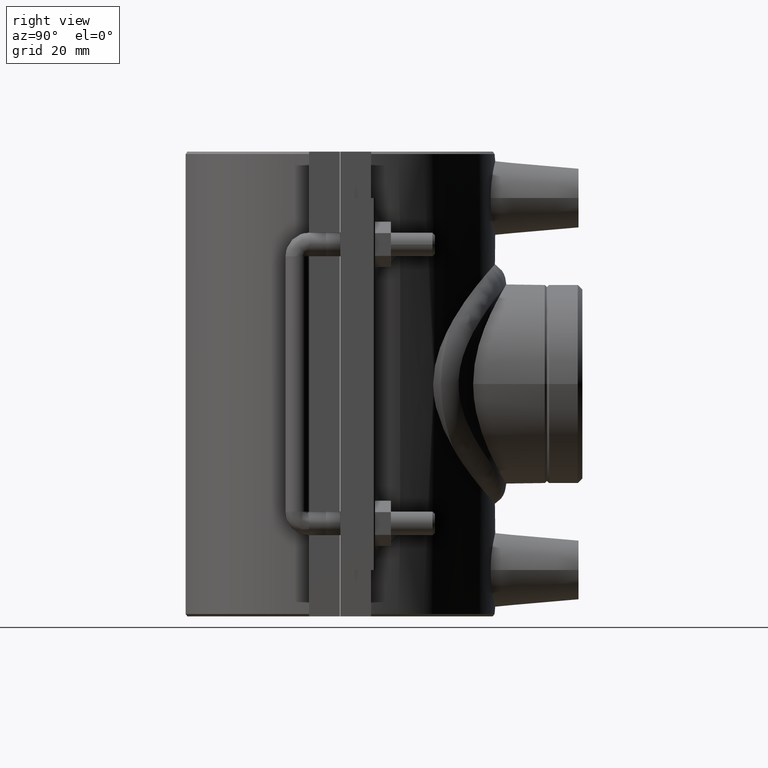
[diagram: clean part render]
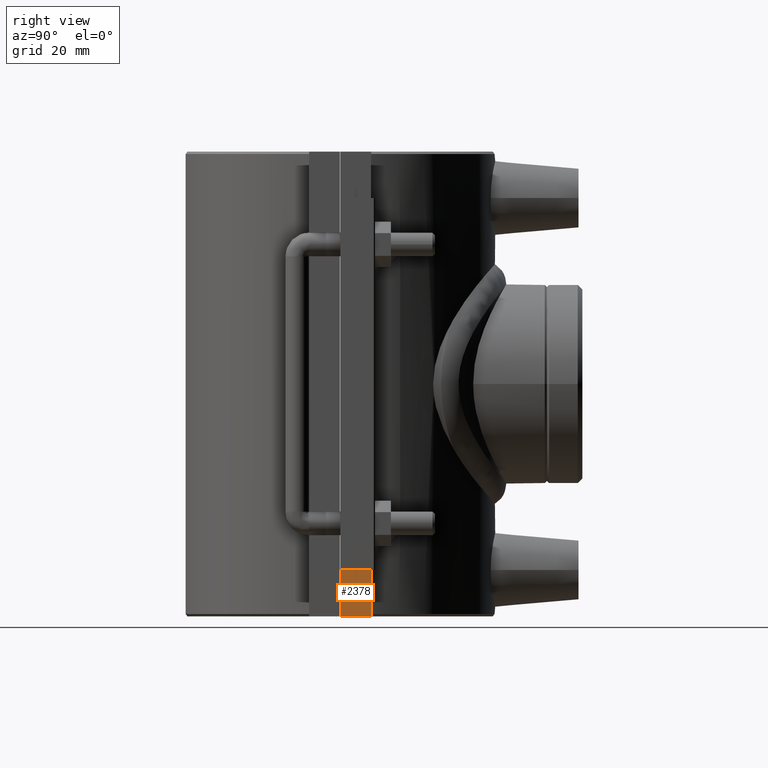
[diagram: same view with one face highlighted and labeled with its STEP entity id]
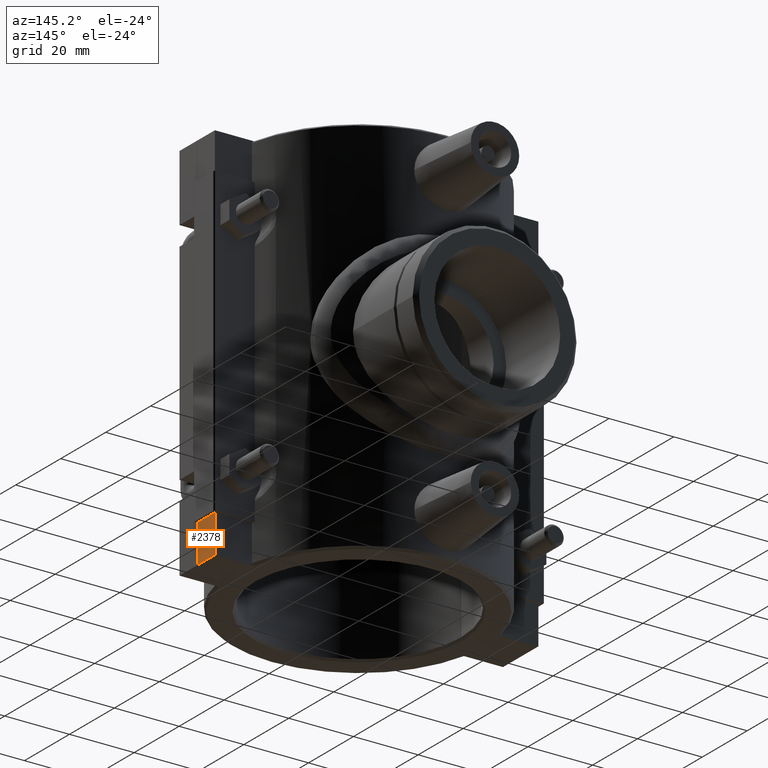
[diagram: same view with one face highlighted and labeled with its STEP entity id]
A machine part, right view. The second image highlights one B-rep face of the part: STEP entity #2378.
A second angle (auxiliary view) of the same face is appended — the face is thin or edge-on in the first view.
In plain terms, the highlighted planar face has unit normal (1, 0, 0).
Its self-contained STEP definition (entity closure, byte-faithful):
#314=FACE_OUTER_BOUND('',#504,.T.);
#504=EDGE_LOOP('',(#2133,#2134,#2135,#2136));
#578=LINE('',#3561,#769);
#659=LINE('',#4158,#850);
#696=LINE('',#4788,#887);
#697=LINE('',#4789,#888);
#769=VECTOR('',#2719,7.82499999999999);
#850=VECTOR('',#2992,11.8);
#887=VECTOR('',#3201,7.82499999999999);
#888=VECTOR('',#3202,11.8);
#1041=VERTEX_POINT('',#3558);
#1042=VERTEX_POINT('',#3560);
#1129=VERTEX_POINT('',#4156);
#1187=VERTEX_POINT('',#4787);
#1279=EDGE_CURVE('',#1042,#1041,#578,.T.);
#1412=EDGE_CURVE('',#1041,#1129,#659,.T.);
#1507=EDGE_CURVE('',#1187,#1129,#696,.T.);
#1508=EDGE_CURVE('',#1187,#1042,#697,.T.);
#2133=ORIENTED_EDGE('',*,*,#1279,.T.);
#2134=ORIENTED_EDGE('',*,*,#1412,.T.);
#2135=ORIENTED_EDGE('',*,*,#1507,.F.);
#2136=ORIENTED_EDGE('',*,*,#1508,.T.);
#2236=PLANE('',#2591);
#2378=ADVANCED_FACE('',(#314),#2236,.T.);
#2591=AXIS2_PLACEMENT_3D('',#4786,#3199,#3200);
#2719=DIRECTION('',(0.,-1.,0.));
#2992=DIRECTION('',(0.,0.,-1.));
#3199=DIRECTION('center_axis',(1.,0.,0.));
#3200=DIRECTION('ref_axis',(0.,1.,0.));
#3201=DIRECTION('',(0.,-1.,0.));
#3202=DIRECTION('',(0.,0.,1.));
#3558=CARTESIAN_POINT('',(50.,0.05,-47.2));
#3560=CARTESIAN_POINT('',(50.,7.87499999999999,-47.2));
#3561=CARTESIAN_POINT('',(50.,-0.47074400503282,-47.2));
#4156=CARTESIAN_POINT('',(50.,0.05,-59.));
#4158=CARTESIAN_POINT('',(50.,0.05,-29.5));
#4786=CARTESIAN_POINT('Origin',(50.,-7.87500000000001,0.));
#4787=CARTESIAN_POINT('',(50.,7.87499999999999,-59.));
#4788=CARTESIAN_POINT('',(50.,-7.87500000000001,-59.));
#4789=CARTESIAN_POINT('',(50.,7.87499999999999,0.));